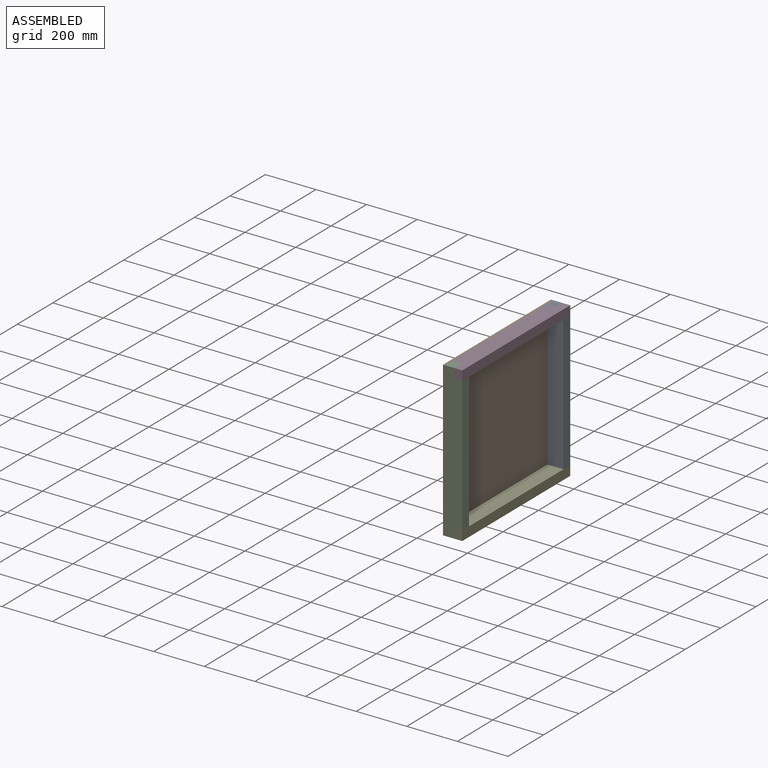
[diagram: assembled view]
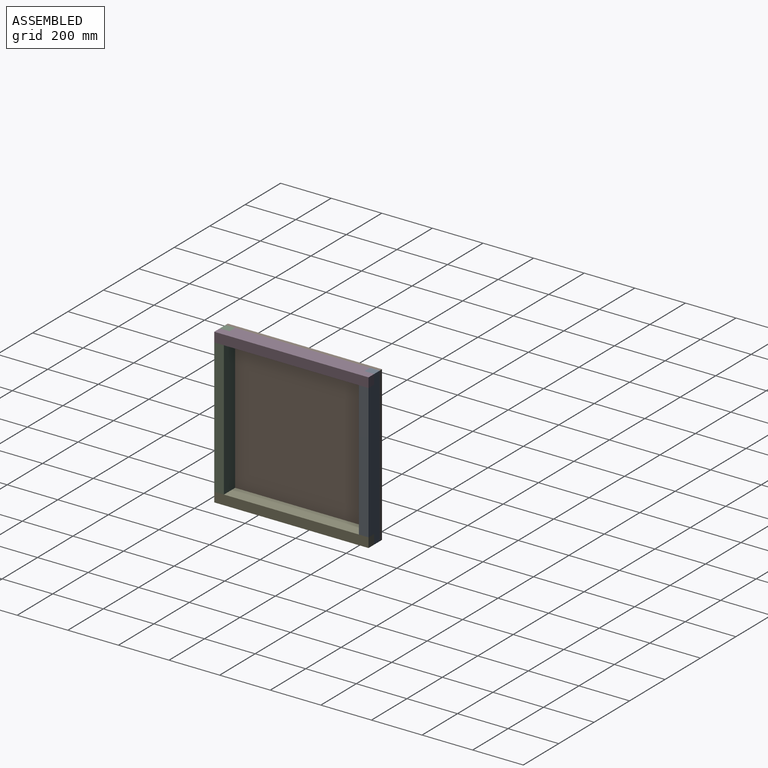
[diagram: assembled view, second angle]
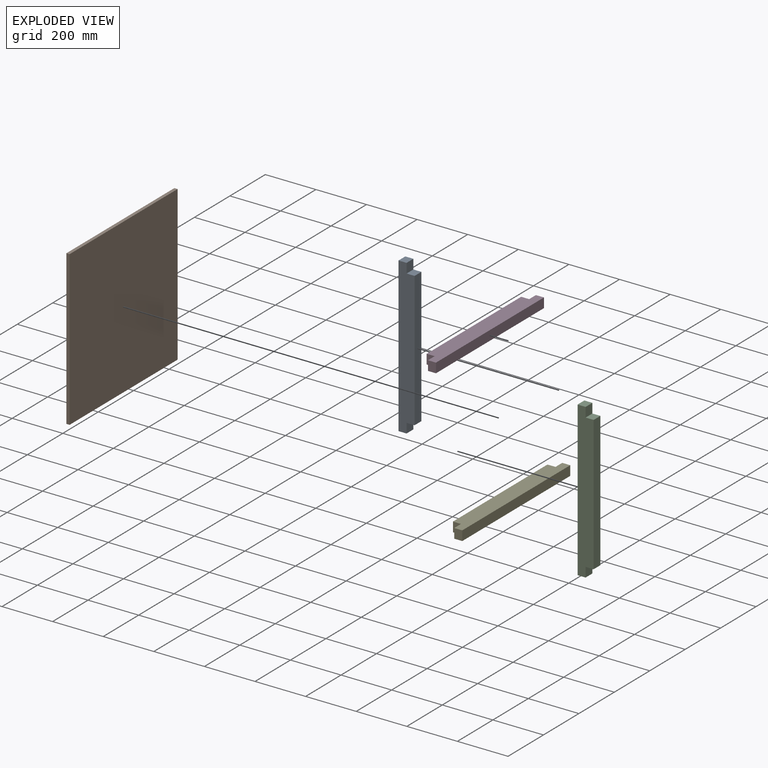
[diagram: exploded view]
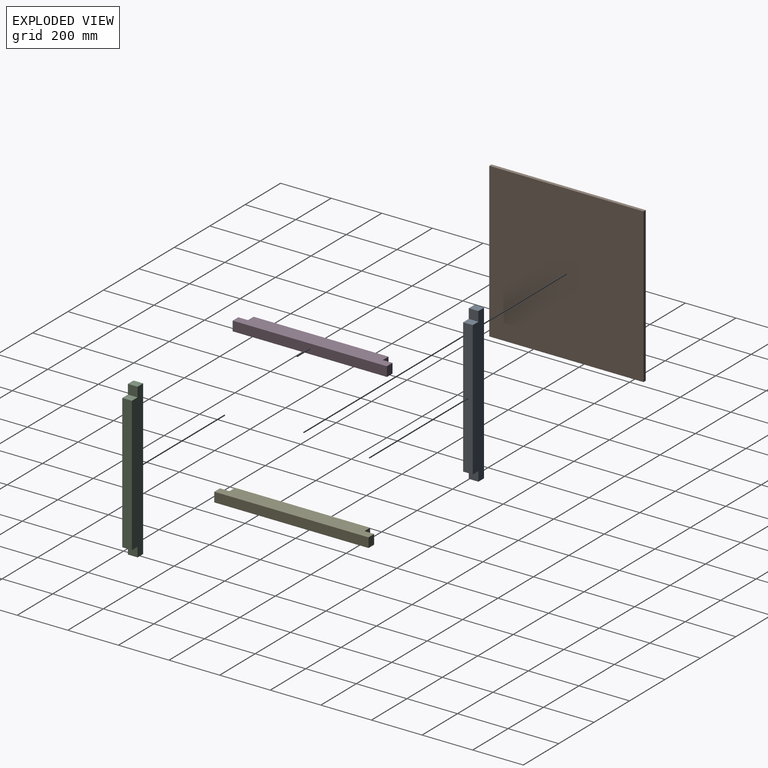
[diagram: exploded view, second angle]
ASSEMBLY  parts=5 mates=4
PART A: 10 faces, bbox 609.6x38.1x63.5 mm
  f0: plane 609.6x63.5mm, normal (0,1,0), area 36290.2mm2, adj f1,f3,f4,f5,f6,f7,f8,f9
  f1: plane 38.1x31.75mm, normal (-1,0,0), area 1209.7mm2, adj f0,f2,f5,f9
  f2: plane 609.6x63.5mm, normal (0,-1,0), area 36290.2mm2, adj f1,f3,f4,f5,f6,f7,f8,f9
  f3: plane 38.1x31.75mm, normal (1,0,0), area 1209.7mm2, adj f0,f2,f5,f7
  f4: plane 533.4x38.1mm, normal (0,0,1), area 20322.5mm2, adj f0,f2,f6,f8
  f5: plane 609.6x38.1mm, normal (0,0,-1), area 23225.8mm2, adj f0,f1,f2,f3
  f6: plane 38.1x31.75mm, normal (1,0,0), area 1209.7mm2, adj f0,f2,f4,f7
  f7: plane 38.1x38.1mm, normal (0,0,1), area 1451.6mm2, adj f0,f2,f3,f6
  f8: plane 38.1x31.75mm, normal (-1,0,0), area 1209.7mm2, adj f0,f2,f4,f9
  f9: plane 38.1x38.1mm, normal (0,0,1), area 1451.6mm2, adj f0,f1,f2,f8
PART B: 6 faces, bbox 609.6x609.6x12.7 mm
  f0: plane 609.6x12.7mm, normal (0,-1,0), area 7741.9mm2, adj f1,f3,f4,f5
  f1: plane 609.6x12.7mm, normal (1,0,0), area 7741.9mm2, adj f0,f2,f4,f5
  f2: plane 609.6x12.7mm, normal (0,1,0), area 7741.9mm2, adj f1,f3,f4,f5
  f3: plane 609.6x12.7mm, normal (-1,0,0), area 7741.9mm2, adj f0,f2,f4,f5
  f4: plane 609.6x609.6mm, normal (0,0,-1), area 371612.2mm2, adj f0,f1,f2,f3
  f5: plane 609.6x609.6mm, normal (0,0,1), area 371612.2mm2, adj f0,f1,f2,f3
PART C: same geometry as A
PART D: same geometry as A
PART E: same geometry as A
PLACE A rot(axis=(0,1,0),90deg) t=(-314.56,-366.57,522.15)mm
PLACE B rot(axis=(0,-1,0),90deg) t=(282.34,-652.32,522.15)mm
PLACE C rot(axis=(-0.71,0,-0.71),180deg) t=(-314.56,-938.07,522.15)mm
PLACE D rot(axis=(-0.58,-0.58,0.58),120deg) t=(-251.06,-652.32,807.9)mm
PLACE E rot(axis=(0.58,-0.58,-0.58),120deg) t=(-251.06,-652.32,236.4)mm
MATE planar C.f5 <-> B.f4  axis (1,0,0) through (-314.56,-957.12,217.35)mm
MATE planar A.f5 <-> B.f4  axis (1,0,0) through (-314.56,-347.52,826.95)mm
MATE planar D.f7 <-> A.f9  axis (-1,0,0) through (-282.81,-366.57,807.9)mm
MATE planar E.f7 <-> C.f9  axis (-1,0,0) through (-282.81,-938.07,236.4)mm
